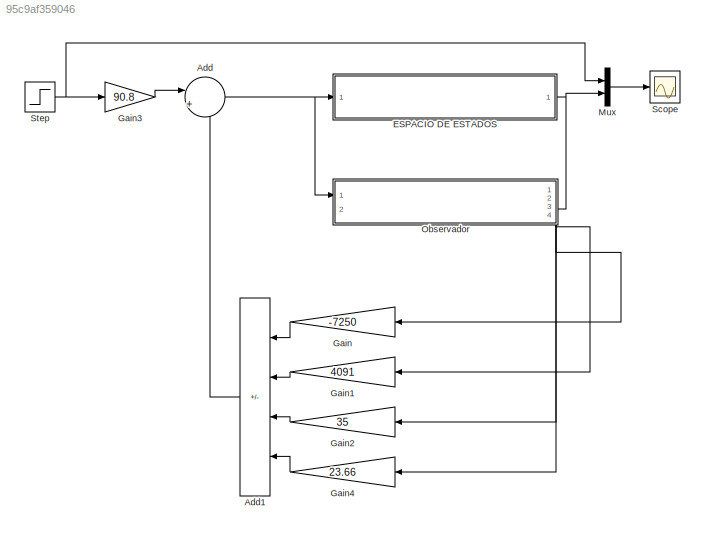
MODEL slx_95c9af359046
KIND model
CONFIG AbsTol = auto
CONFIG EnableMultiTasking = off
CONFIG FixedStep = 0.001
CONFIG MaxStep = auto
CONFIG MinStep = auto
CONFIG RelTol = 1e-3
CONFIG SampleTimeConstraint = Unconstrained
CONFIG SolverName = ode4
CONFIG StartTime = 0.0
CONFIG StopTime = 15
WORKSPACE source: mxarray member
WORKSPACE ci = 5
BLOCK [Sum] Add
  Inputs = |+-
  Ports = [2, 1]
BLOCK [Sum] Add1
  IconShape = rectangular
  Inputs = -+++
  Ports = [4, 1]
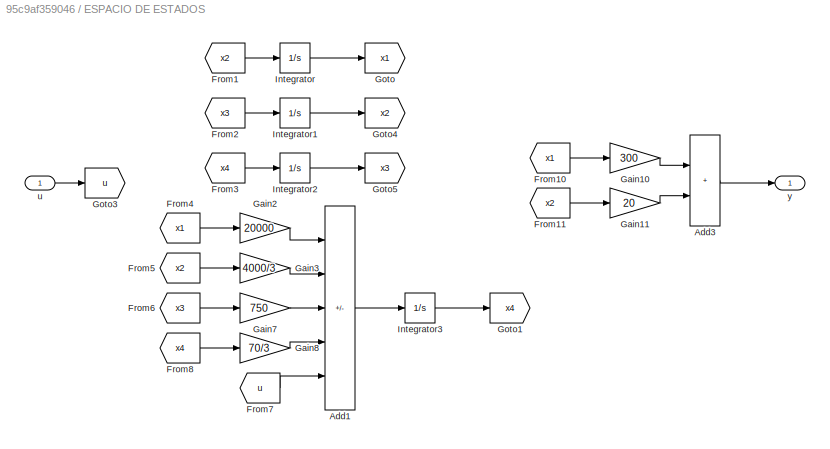
BLOCK [SubSystem] ESPACIO DE ESTADOS
  Ports = [1, 1]
  RequestExecContextInheritance = off
BLOCK [Sum] ESPACIO DE ESTADOS/Add1
  IconShape = rectangular
  Inputs = ----+
  Ports = [5, 1]
BLOCK [Sum] ESPACIO DE ESTADOS/Add3
  IconShape = rectangular
  Ports = [2, 1]
BLOCK [From] ESPACIO DE ESTADOS/From1
  GotoTag = x2
BLOCK [From] ESPACIO DE ESTADOS/From10
  GotoTag = x1
BLOCK [From] ESPACIO DE ESTADOS/From11
  GotoTag = x2
BLOCK [From] ESPACIO DE ESTADOS/From2
  GotoTag = x3
BLOCK [From] ESPACIO DE ESTADOS/From3
  GotoTag = x4
BLOCK [From] ESPACIO DE ESTADOS/From4
  GotoTag = x1
BLOCK [From] ESPACIO DE ESTADOS/From5
  GotoTag = x2
BLOCK [From] ESPACIO DE ESTADOS/From6
  GotoTag = x3
BLOCK [From] ESPACIO DE ESTADOS/From7
  GotoTag = u
BLOCK [From] ESPACIO DE ESTADOS/From8
  GotoTag = x4
BLOCK [Gain] ESPACIO DE ESTADOS/Gain10
  Gain = 300
BLOCK [Gain] ESPACIO DE ESTADOS/Gain11
  Gain = 20
BLOCK [Gain] ESPACIO DE ESTADOS/Gain2
  Gain = 20000
BLOCK [Gain] ESPACIO DE ESTADOS/Gain3
  Gain = 4000/3
BLOCK [Gain] ESPACIO DE ESTADOS/Gain7
  Gain = 750
BLOCK [Gain] ESPACIO DE ESTADOS/Gain8
  Gain = 70/3
BLOCK [Goto] ESPACIO DE ESTADOS/Goto
  GotoTag = x1
BLOCK [Goto] ESPACIO DE ESTADOS/Goto1
  GotoTag = x4
BLOCK [Goto] ESPACIO DE ESTADOS/Goto3
  GotoTag = u
BLOCK [Goto] ESPACIO DE ESTADOS/Goto4
  GotoTag = x2
BLOCK [Goto] ESPACIO DE ESTADOS/Goto5
  GotoTag = x3
BLOCK [Integrator] ESPACIO DE ESTADOS/Integrator
  Ports = [1, 1]
BLOCK [Integrator] ESPACIO DE ESTADOS/Integrator1
  Ports = [1, 1]
BLOCK [Integrator] ESPACIO DE ESTADOS/Integrator2
  Ports = [1, 1]
BLOCK [Integrator] ESPACIO DE ESTADOS/Integrator3
  Ports = [1, 1]
BLOCK [Inport] ESPACIO DE ESTADOS/u
BLOCK [Outport] ESPACIO DE ESTADOS/y
BLOCK [Gain] Gain
  Gain = -7250
BLOCK [Gain] Gain1
  Gain = 4091
BLOCK [Gain] Gain2
  Gain = 35
BLOCK [Gain] Gain3
  Gain = 90.8
BLOCK [Gain] Gain4
  Gain = 23.66
BLOCK [Mux] Mux
  DisplayOption = bar
  Inputs = 2
  Ports = [2, 1]
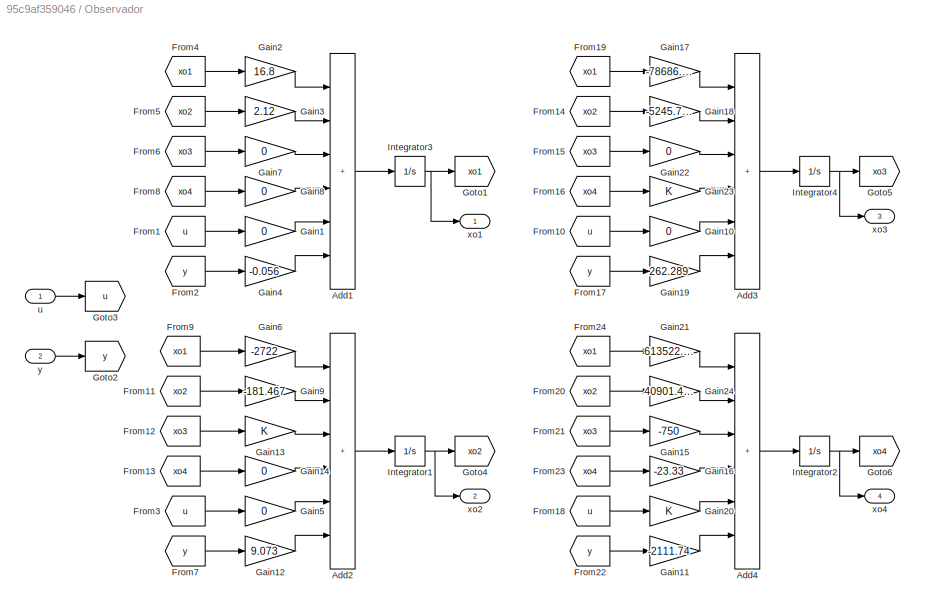
BLOCK [SubSystem] Observador
  PortSchema = {"entries":[{"content":{"sides":[{"content":{"connectorIds":["In1"]},"type":"ConnectorPlacement.EquallySpacedRectSide","uuid":"cad0d0da-4eac-49d4-839f-d9239b557f86"},{"content":{"connectorIds":["In2"],"side":"RIGHT"},"type":"ConnectorPlacement.EquallySpacedRectSide","uuid":"de9e284f-829b-40d7-81eb-b3dcf3e7345e"},{"content":{"connectorIds":[],"side":"TOP"},"type":"ConnectorPlacement.EquallySpacedRe...<+410ch>
  Ports = [2, 4]
  RequestExecContextInheritance = off
BLOCK [Sum] Observador/Add1
  IconShape = rectangular
  Inputs = ++++++
  Ports = [6, 1]
BLOCK [Sum] Observador/Add2
  IconShape = rectangular
  Inputs = ++++++
  Ports = [6, 1]
BLOCK [Sum] Observador/Add3
  IconShape = rectangular
  Inputs = ++++++
  Ports = [6, 1]
BLOCK [Sum] Observador/Add4
  IconShape = rectangular
  Inputs = ++++++
  Ports = [6, 1]
BLOCK [From] Observador/From1
  GotoTag = u
BLOCK [From] Observador/From10
  GotoTag = u
BLOCK [From] Observador/From11
  GotoTag = xo2
BLOCK [From] Observador/From12
  GotoTag = xo3
BLOCK [From] Observador/From13
  GotoTag = xo4
BLOCK [From] Observador/From14
  GotoTag = xo2
BLOCK [From] Observador/From15
  GotoTag = xo3
BLOCK [From] Observador/From16
  GotoTag = xo4
BLOCK [From] Observador/From17
  GotoTag = y
BLOCK [From] Observador/From18
  GotoTag = u
BLOCK [From] Observador/From19
  GotoTag = xo1
BLOCK [From] Observador/From2
  GotoTag = y
BLOCK [From] Observador/From20
  GotoTag = xo2
BLOCK [From] Observador/From21
  GotoTag = xo3
BLOCK [From] Observador/From22
  GotoTag = y
BLOCK [From] Observador/From23
  GotoTag = xo4
BLOCK [From] Observador/From24
  GotoTag = xo1
BLOCK [From] Observador/From3
  GotoTag = u
BLOCK [From] Observador/From4
  GotoTag = xo1
BLOCK [From] Observador/From5
  GotoTag = xo2
BLOCK [From] Observador/From6
  GotoTag = xo3
BLOCK [From] Observador/From7
  GotoTag = y
BLOCK [From] Observador/From8
  GotoTag = xo4
BLOCK [From] Observador/From9
  GotoTag = xo1
BLOCK [Gain] Observador/Gain1
  Gain = 0
BLOCK [Gain] Observador/Gain10
  Gain = 0
BLOCK [Gain] Observador/Gain11
  Gain = -2111.74
BLOCK [Gain] Observador/Gain12
  Gain = 9.073
BLOCK [Gain] Observador/Gain13
BLOCK [Gain] Observador/Gain14
  Gain = 0
BLOCK [Gain] Observador/Gain15
  Gain = -750
BLOCK [Gain] Observador/Gain16
  Gain = -23.33
BLOCK [Gain] Observador/Gain17
  Gain = -78686.67
BLOCK [Gain] Observador/Gain18
  Gain = -5245.778
BLOCK [Gain] Observador/Gain19
  Gain = 262.289
BLOCK [Gain] Observador/Gain2
  Gain = 16.8
BLOCK [Gain] Observador/Gain20
BLOCK [Gain] Observador/Gain21
  Gain = 613522.22
BLOCK [Gain] Observador/Gain22
  Gain = 0
BLOCK [Gain] Observador/Gain23
BLOCK [Gain] Observador/Gain24
  Gain = 40901.481
BLOCK [Gain] Observador/Gain3
  Gain = 2.12
BLOCK [Gain] Observador/Gain4
  Gain = -0.056
BLOCK [Gain] Observador/Gain5
  Gain = 0
BLOCK [Gain] Observador/Gain6
  Gain = -2722
BLOCK [Gain] Observador/Gain7
  Gain = 0
BLOCK [Gain] Observador/Gain8
  Gain = 0
BLOCK [Gain] Observador/Gain9
  Gain = -181.467
BLOCK [Goto] Observador/Goto1
  GotoTag = xo1
BLOCK [Goto] Observador/Goto2
  GotoTag = y
BLOCK [Goto] Observador/Goto3
  GotoTag = u
BLOCK [Goto] Observador/Goto4
  GotoTag = xo2
BLOCK [Goto] Observador/Goto5
  GotoTag = xo3
BLOCK [Goto] Observador/Goto6
  GotoTag = xo4
BLOCK [Integrator] Observador/Integrator1
  Ports = [1, 1]
BLOCK [Integrator] Observador/Integrator2
  Ports = [1, 1]
BLOCK [Integrator] Observador/Integrator3
  Ports = [1, 1]
BLOCK [Integrator] Observador/Integrator4
  Ports = [1, 1]
BLOCK [Inport] Observador/u
BLOCK [Outport] Observador/xo1
BLOCK [Outport] Observador/xo2
  Port = 2
BLOCK [Outport] Observador/xo3
  Port = 3
BLOCK [Outport] Observador/xo4
  Port = 4
BLOCK [Inport] Observador/y
  Port = 2
BLOCK [Scope] Scope
  Floating = off
  NumInputPorts = 1
  Ports = [1]
  ScopeSpecificationString = Simulink.scopes.TimeScopeBlockCfg('CurrentConfiguration', extmgr.ConfigurationSet(extmgr.Configuration('Core','General UI',true),extmgr.Configuration('Core','Source UI',true),extmgr.Configuration('Sources','WiredSimulink',true),extmgr.Configuration('Visuals','Time Domain',true,'SerializedDisplays',{struct('MinYLimReal','-0.1546','MaxYLimReal','1.39137','YLabelReal','','MinYLimMag','0.00000','MaxYL...<+1444ch>
BLOCK [Step] Step
  SampleTime = 0
LINE Add1:1 -> Add:2
NET Add:1 -> ESPACIO DE ESTADOS:1, Observador:1
LINE ESPACIO DE ESTADOS/Add1:1 -> ESPACIO DE ESTADOS/Integrator3:1
LINE ESPACIO DE ESTADOS/Add3:1 -> ESPACIO DE ESTADOS/y:1
LINE ESPACIO DE ESTADOS/From10:1 -> ESPACIO DE ESTADOS/Gain10:1
LINE ESPACIO DE ESTADOS/From11:1 -> ESPACIO DE ESTADOS/Gain11:1
LINE ESPACIO DE ESTADOS/From1:1 -> ESPACIO DE ESTADOS/Integrator:1
LINE ESPACIO DE ESTADOS/From2:1 -> ESPACIO DE ESTADOS/Integrator1:1
LINE ESPACIO DE ESTADOS/From3:1 -> ESPACIO DE ESTADOS/Integrator2:1
LINE ESPACIO DE ESTADOS/From4:1 -> ESPACIO DE ESTADOS/Gain2:1
LINE ESPACIO DE ESTADOS/From5:1 -> ESPACIO DE ESTADOS/Gain3:1
LINE ESPACIO DE ESTADOS/From6:1 -> ESPACIO DE ESTADOS/Gain7:1
LINE ESPACIO DE ESTADOS/From7:1 -> ESPACIO DE ESTADOS/Add1:5
LINE ESPACIO DE ESTADOS/From8:1 -> ESPACIO DE ESTADOS/Gain8:1
LINE ESPACIO DE ESTADOS/Gain10:1 -> ESPACIO DE ESTADOS/Add3:1
LINE ESPACIO DE ESTADOS/Gain11:1 -> ESPACIO DE ESTADOS/Add3:2
LINE ESPACIO DE ESTADOS/Gain2:1 -> ESPACIO DE ESTADOS/Add1:1
LINE ESPACIO DE ESTADOS/Gain3:1 -> ESPACIO DE ESTADOS/Add1:2
LINE ESPACIO DE ESTADOS/Gain7:1 -> ESPACIO DE ESTADOS/Add1:3
LINE ESPACIO DE ESTADOS/Gain8:1 -> ESPACIO DE ESTADOS/Add1:4
LINE ESPACIO DE ESTADOS/Integrator1:1 -> ESPACIO DE ESTADOS/Goto4:1
LINE ESPACIO DE ESTADOS/Integrator2:1 -> ESPACIO DE ESTADOS/Goto5:1
LINE ESPACIO DE ESTADOS/Integrator3:1 -> ESPACIO DE ESTADOS/Goto1:1
LINE ESPACIO DE ESTADOS/Integrator:1 -> ESPACIO DE ESTADOS/Goto:1
LINE ESPACIO DE ESTADOS/u:1 -> ESPACIO DE ESTADOS/Goto3:1
NET ESPACIO DE ESTADOS:1 -> Mux:2, Observador:2
LINE Gain1:1 -> Add1:2
LINE Gain2:1 -> Add1:3
LINE Gain3:1 -> Add:1
LINE Gain4:1 -> Add1:4
LINE Gain:1 -> Add1:1
LINE Mux:1 -> Scope:1
LINE Observador/Add1:1 -> Observador/Integrator3:1
LINE Observador/Add2:1 -> Observador/Integrator1:1
LINE Observador/Add3:1 -> Observador/Integrator4:1
LINE Observador/Add4:1 -> Observador/Integrator2:1
LINE Observador/From10:1 -> Observador/Gain10:1
LINE Observador/From11:1 -> Observador/Gain9:1
LINE Observador/From12:1 -> Observador/Gain13:1
LINE Observador/From13:1 -> Observador/Gain14:1
LINE Observador/From14:1 -> Observador/Gain18:1
LINE Observador/From15:1 -> Observador/Gain22:1
LINE Observador/From16:1 -> Observador/Gain23:1
LINE Observador/From17:1 -> Observador/Gain19:1
LINE Observador/From18:1 -> Observador/Gain20:1
LINE Observador/From19:1 -> Observador/Gain17:1
LINE Observador/From1:1 -> Observador/Gain1:1
LINE Observador/From20:1 -> Observador/Gain24:1
LINE Observador/From21:1 -> Observador/Gain15:1
LINE Observador/From22:1 -> Observador/Gain11:1
LINE Observador/From23:1 -> Observador/Gain16:1
LINE Observador/From24:1 -> Observador/Gain21:1
LINE Observador/From2:1 -> Observador/Gain4:1
LINE Observador/From3:1 -> Observador/Gain5:1
LINE Observador/From4:1 -> Observador/Gain2:1
LINE Observador/From5:1 -> Observador/Gain3:1
LINE Observador/From6:1 -> Observador/Gain7:1
LINE Observador/From7:1 -> Observador/Gain12:1
LINE Observador/From8:1 -> Observador/Gain8:1
LINE Observador/From9:1 -> Observador/Gain6:1
LINE Observador/Gain10:1 -> Observador/Add3:5
LINE Observador/Gain11:1 -> Observador/Add4:6
LINE Observador/Gain12:1 -> Observador/Add2:6
LINE Observador/Gain13:1 -> Observador/Add2:3
LINE Observador/Gain14:1 -> Observador/Add2:4
LINE Observador/Gain15:1 -> Observador/Add4:3
LINE Observador/Gain16:1 -> Observador/Add4:4
LINE Observador/Gain17:1 -> Observador/Add3:1
LINE Observador/Gain18:1 -> Observador/Add3:2
LINE Observador/Gain19:1 -> Observador/Add3:6
LINE Observador/Gain1:1 -> Observador/Add1:5
LINE Observador/Gain20:1 -> Observador/Add4:5
LINE Observador/Gain21:1 -> Observador/Add4:1
LINE Observador/Gain22:1 -> Observador/Add3:3
LINE Observador/Gain23:1 -> Observador/Add3:4
LINE Observador/Gain24:1 -> Observador/Add4:2
LINE Observador/Gain2:1 -> Observador/Add1:1
LINE Observador/Gain3:1 -> Observador/Add1:2
LINE Observador/Gain4:1 -> Observador/Add1:6
LINE Observador/Gain5:1 -> Observador/Add2:5
LINE Observador/Gain6:1 -> Observador/Add2:1
LINE Observador/Gain7:1 -> Observador/Add1:3
LINE Observador/Gain8:1 -> Observador/Add1:4
LINE Observador/Gain9:1 -> Observador/Add2:2
NET Observador/Integrator1:1 -> Observador/Goto4:1, Observador/xo2:1
NET Observador/Integrator2:1 -> Observador/Goto6:1, Observador/xo4:1
NET Observador/Integrator3:1 -> Observador/Goto1:1, Observador/xo1:1
NET Observador/Integrator4:1 -> Observador/Goto5:1, Observador/xo3:1
LINE Observador/u:1 -> Observador/Goto3:1
LINE Observador/y:1 -> Observador/Goto2:1
LINE Observador:1 -> Gain:1
LINE Observador:2 -> Gain1:1
LINE Observador:3 -> Gain2:1
LINE Observador:4 -> Gain4:1
NET Step:1 -> Gain3:1, Mux:1
note: NET lines group one-source signal fan-out (src -> all destinations, sorted); 1:1 wires keep LINE
